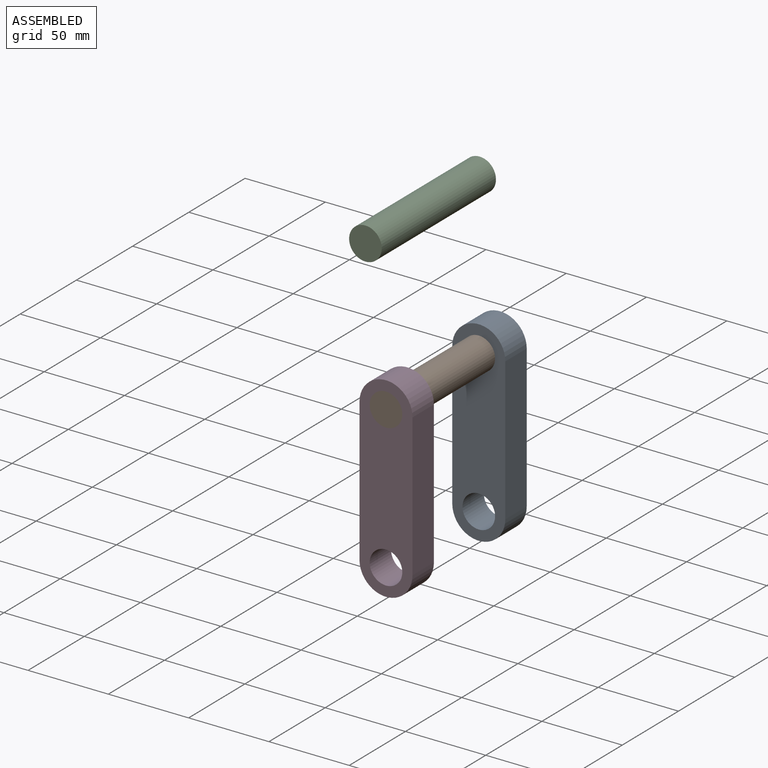
[diagram: assembled view]
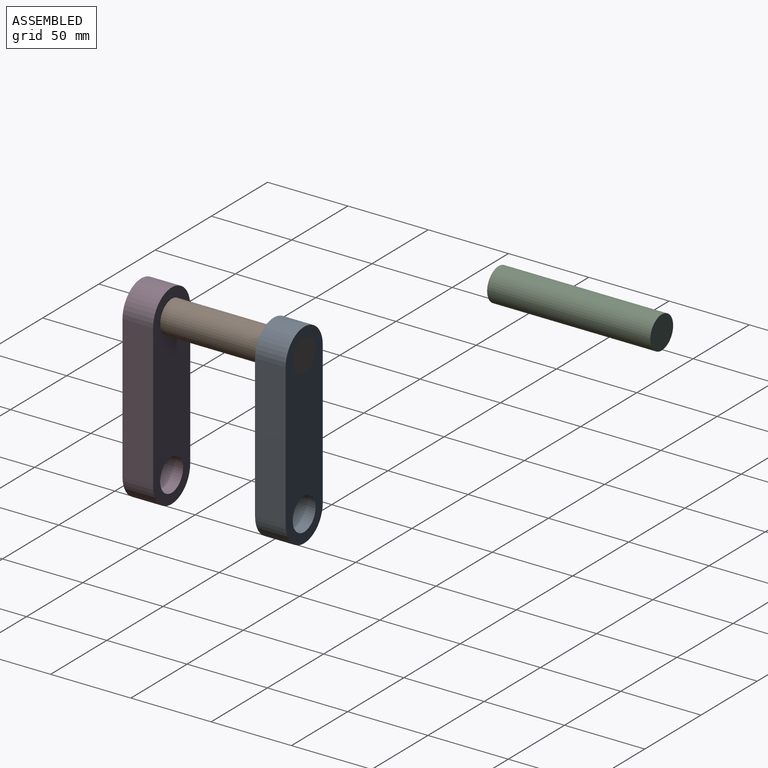
[diagram: assembled view, second angle]
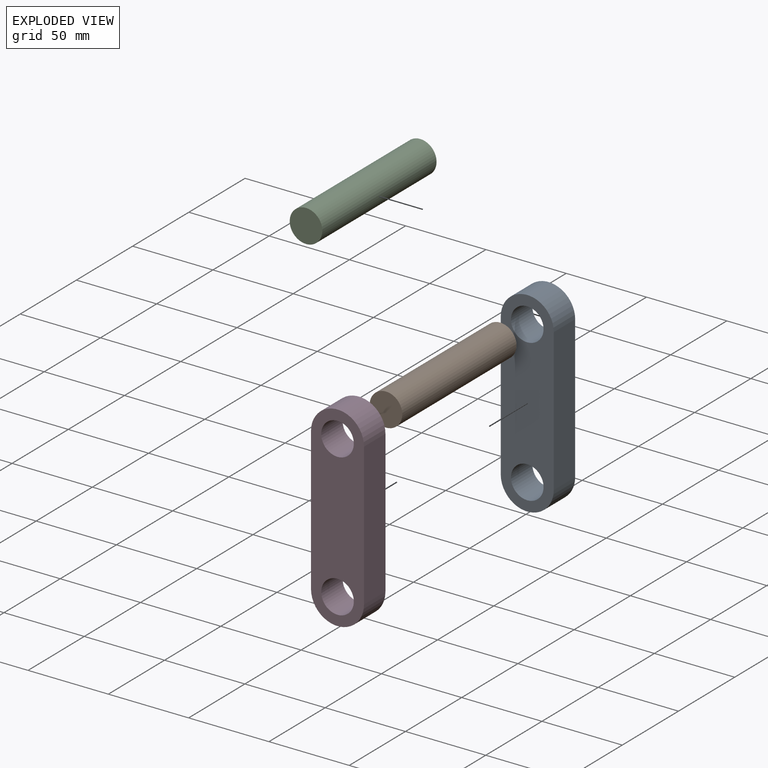
[diagram: exploded view]
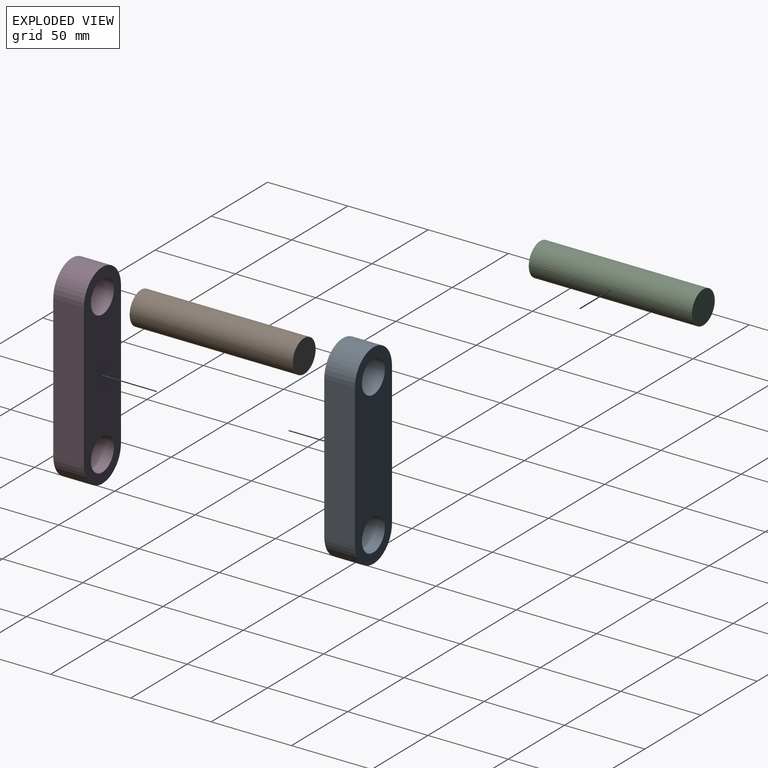
[diagram: exploded view, second angle]
ASSEMBLY  parts=4 mates=2
PART A: 8 faces, bbox 33x19.1x121.9 mm
  f0: plane 88.9x19.05mm, normal (1,0,0), area 1693.5mm2, adj f1,f5,f6,f7
  f1: cylinder r=16.51mm len=33.02mm, axis (0,1,0), area 988.1mm2, adj f0,f2,f6,f7
  f2: plane 88.9x19.05mm, normal (-1,0,0), area 1693.5mm2, adj f1,f5,f6,f7
  f3: cylinder r=10.16mm len=20.32mm, axis (0,1,0), area 1216.1mm2, adj f6,f7
  f4: cylinder r=10.16mm len=20.32mm, axis (0,1,0), area 1216.1mm2, adj f6,f7
  f5: cylinder r=16.51mm len=33.02mm, axis (0,1,0), area 988.1mm2, adj f0,f2,f6,f7
  f6: plane 121.92x33.02mm, normal (0,-1,0), area 3143.2mm2, adj f0,f1,f2,f3,f4,f5
  f7: plane 121.92x33.02mm, normal (0,1,0), area 3143.2mm2, adj f0,f1,f2,f3,f4,f5
PART B: 3 faces, bbox 20.3x101.6x20.3 mm
  f0: cylinder r=10.16mm len=101.6mm, axis (0,1,0), area 6485.9mm2, adj f1,f2
  f1: plane 20.32x20.32mm, normal (0,-1,0), area 324.3mm2, adj f0
  f2: plane 20.32x20.32mm, normal (0,1,0), area 324.3mm2, adj f0
PART C: same geometry as B
PART D: 8 faces, bbox 33x19.1x121.9 mm
  f0: plane 88.9x19.05mm, normal (1,0,0), area 1693.5mm2, adj f1,f5,f6,f7
  f1: cylinder r=16.51mm len=33.02mm, axis (0,-1,0), area 988.1mm2, adj f0,f2,f6,f7
  f2: plane 88.9x19.05mm, normal (-1,0,0), area 1693.5mm2, adj f1,f5,f6,f7
  f3: cylinder r=10.16mm len=20.32mm, axis (0,-1,0), area 1216.1mm2, adj f6,f7
  f4: cylinder r=10.16mm len=20.32mm, axis (0,-1,0), area 1216.1mm2, adj f6,f7
  f5: cylinder r=16.51mm len=33.02mm, axis (0,-1,0), area 988.1mm2, adj f0,f2,f6,f7
  f6: plane 121.92x33.02mm, normal (0,1,0), area 3143.2mm2, adj f0,f1,f2,f3,f4,f5
  f7: plane 121.92x33.02mm, normal (0,-1,0), area 3143.2mm2, adj f0,f1,f2,f3,f4,f5
PLACE A t=(54.31,46.34,-63)mm
PLACE B t=(54.31,-29.86,-63)mm
PLACE C t=(-58.88,113.53,-54.6)mm
PLACE D t=(54.31,-106.06,-63)mm
MATE fastened B.f0 <-> D.f1  axis (0,-1,0) through (54.31,-80.66,-18.55)mm
MATE fastened B.f0 <-> A.f1  axis (0,1,0) through (54.31,20.94,-18.55)mm
